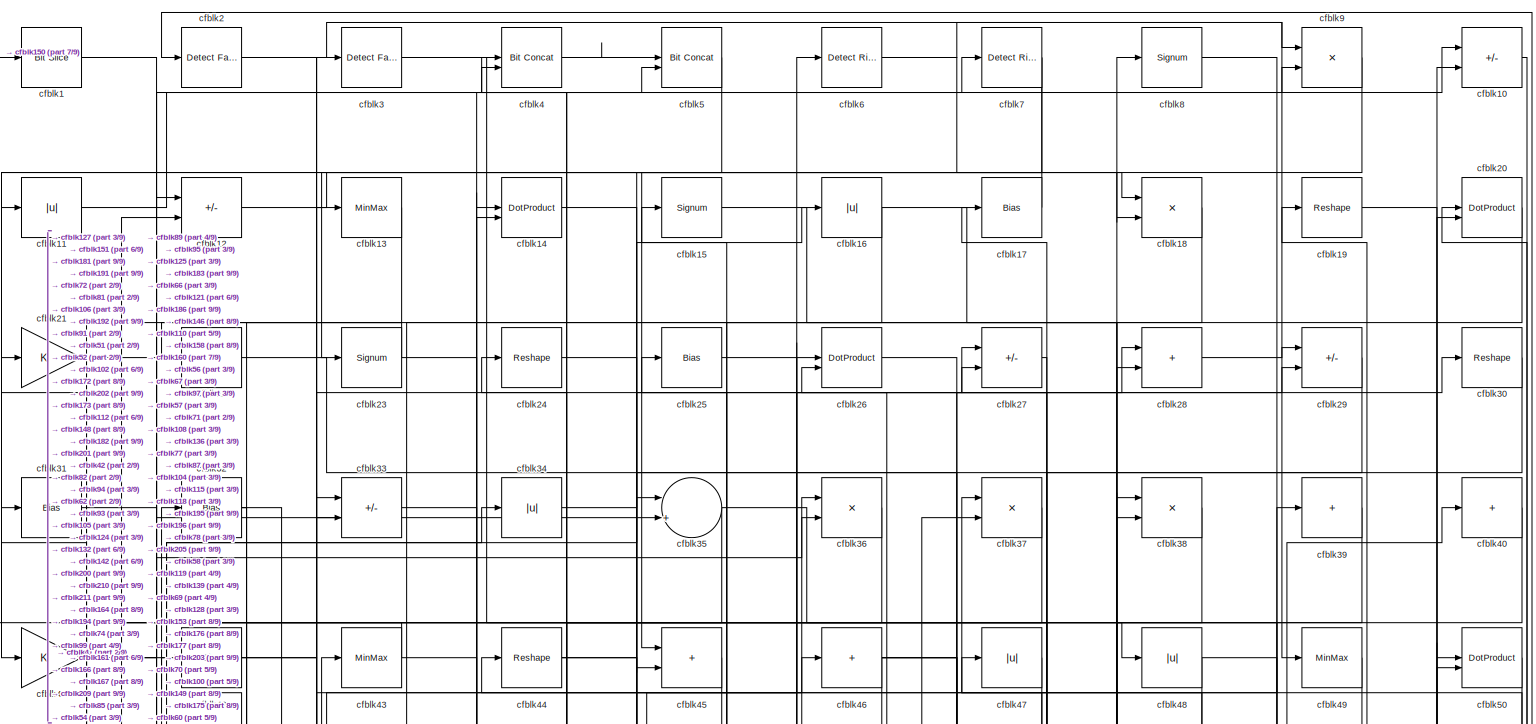
[diagram: root canvas - part 1/9, full width, top band]
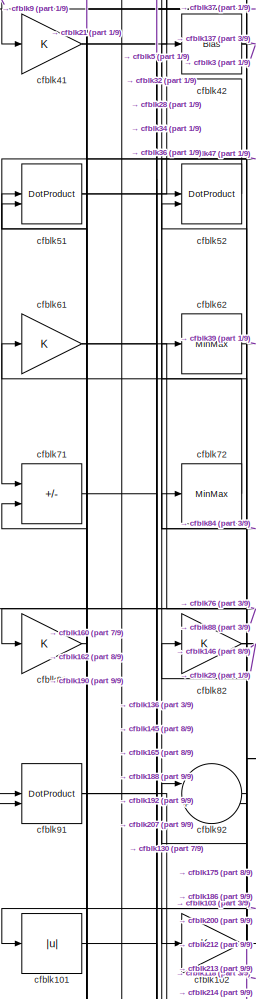
[diagram: root canvas - part 2/9, middle left region]
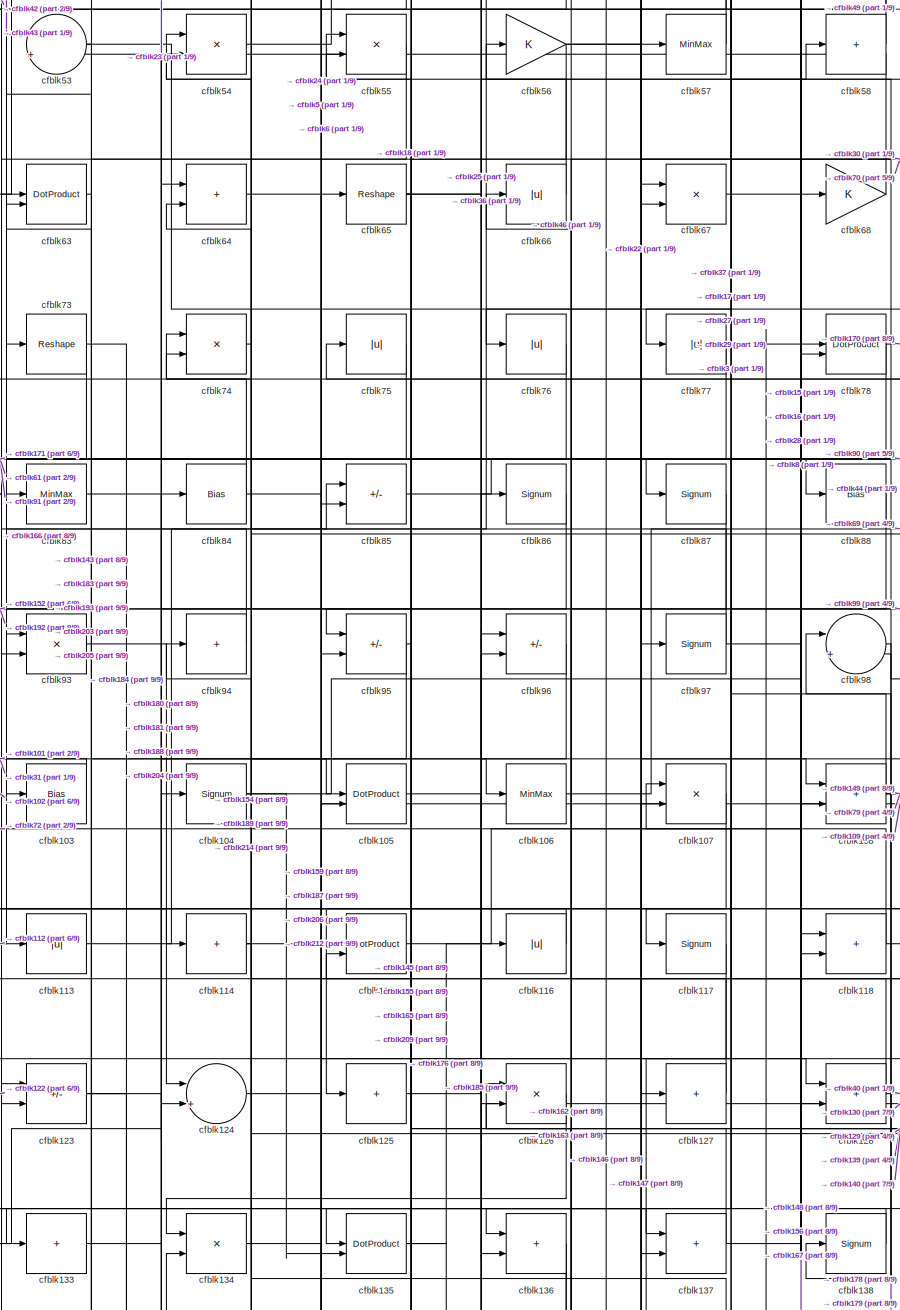
[diagram: root canvas - part 3/9, central region]
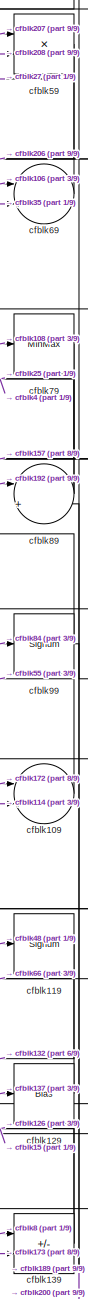
[diagram: root canvas - part 4/9, middle right region]
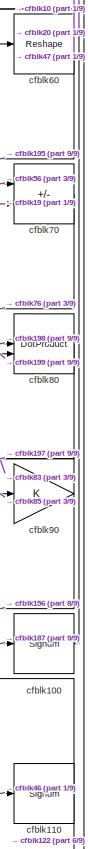
[diagram: root canvas - part 5/9, middle right region]
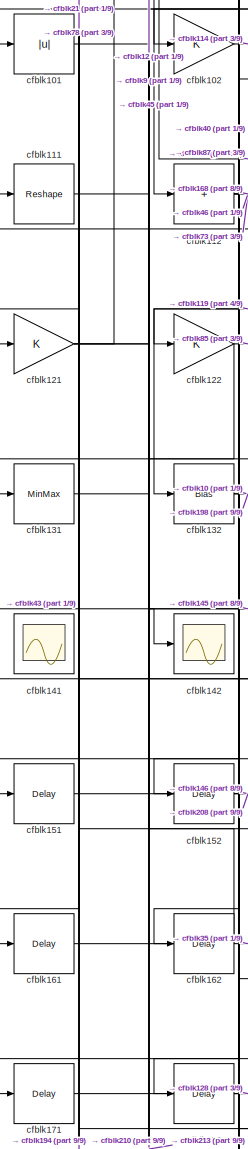
[diagram: root canvas - part 6/9, middle left region]
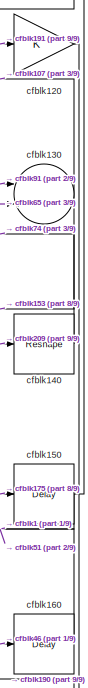
[diagram: root canvas - part 7/9, middle right region]
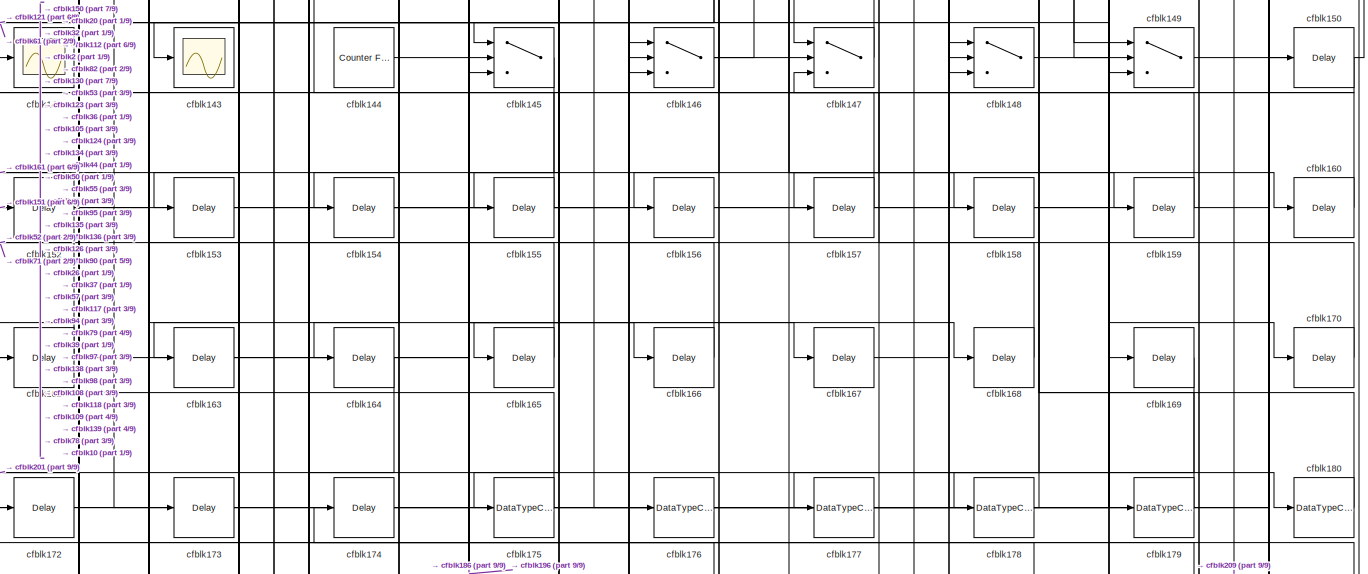
[diagram: root canvas - part 8/9, full width, bottom band]
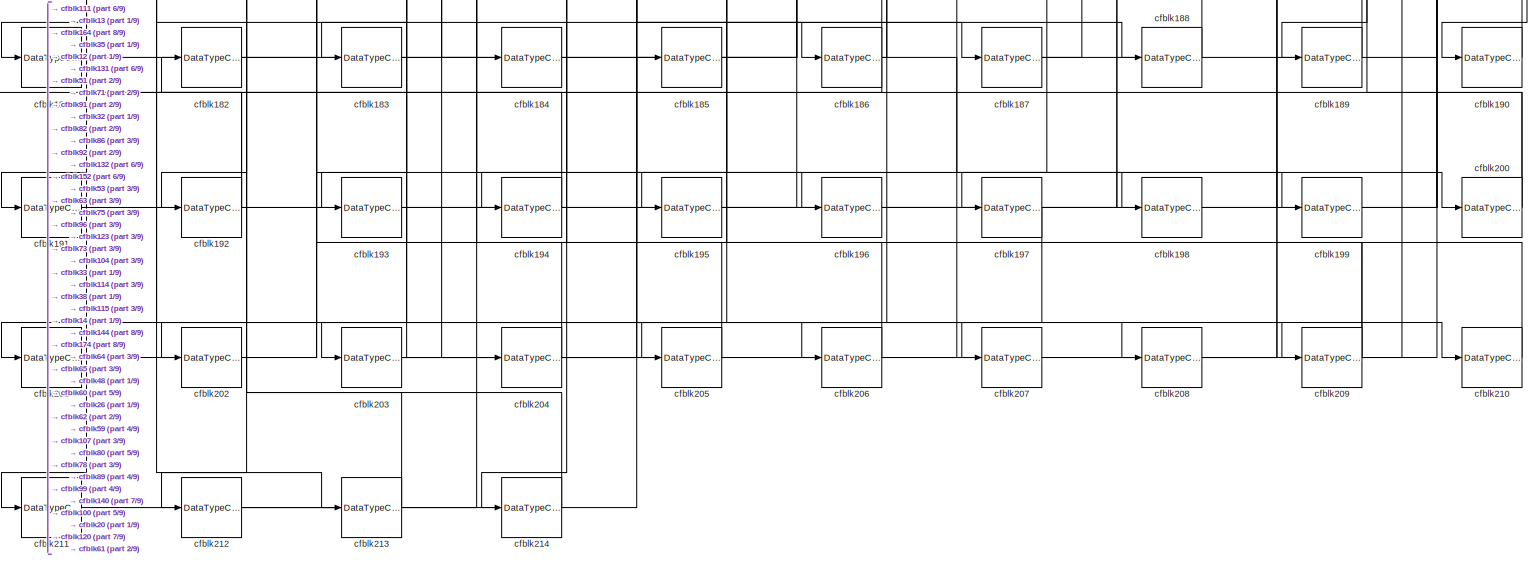
[diagram: root canvas - part 9/9, full width, bottom band]
MODEL slx_e8215247895d
KIND model
CONFIG AbsTol = auto
CONFIG EnableMultiTasking = off
CONFIG FixedStep = auto
CONFIG MaxStep = auto
CONFIG MinStep = auto
CONFIG RelTol = 1e-3
CONFIG SampleTimeConstraint = Unconstrained
CONFIG SolverName = VariableStepAuto
CONFIG StartTime = 0.0
CONFIG StopTime = 10.0
BLOCK [Reference] cfblk1  REF=hdlsllib/Logic and Bit
Operations/Bit Slice
  SourceBlock = hdlsllib/Logic and Bit\nOperations/Bit Slice
  SourceType = Bit Slice
BLOCK [Sum] cfblk10
  IconShape = rectangular
  Inputs = +-
BLOCK [Signum] cfblk100
BLOCK [Abs] cfblk101
  SaturateOnIntegerOverflow = off
BLOCK [Gain] cfblk102
BLOCK [Bias] cfblk103
  Bias = 0.0
  SaturateOnIntegerOverflow = off
BLOCK [Signum] cfblk104
BLOCK [DotProduct] cfblk105
  OutDataTypeStr = Inherit: Inherit via internal rule
BLOCK [MinMax] cfblk106
BLOCK [Product] cfblk107
  Inputs = */
  RndMeth = Zero
  SaturateOnIntegerOverflow = on
BLOCK [Sum] cfblk108
  IconShape = rectangular
BLOCK [Sum] cfblk109
  Inputs = |++
BLOCK [Abs] cfblk11
  SaturateOnIntegerOverflow = off
BLOCK [Signum] cfblk110
BLOCK [Reshape] cfblk111
BLOCK [Sum] cfblk112
  IconShape = rectangular
  Inputs = +
BLOCK [Abs] cfblk113
  SaturateOnIntegerOverflow = off
BLOCK [Sum] cfblk114
  IconShape = rectangular
  Inputs = +
BLOCK [DotProduct] cfblk115
  OutDataTypeStr = Inherit: Inherit via internal rule
BLOCK [Abs] cfblk116
  SaturateOnIntegerOverflow = off
BLOCK [Signum] cfblk117
BLOCK [Sum] cfblk118
  IconShape = rectangular
BLOCK [Signum] cfblk119
BLOCK [Sum] cfblk12
  IconShape = rectangular
  Inputs = +-
BLOCK [Gain] cfblk120
BLOCK [Gain] cfblk121
BLOCK [Gain] cfblk122
BLOCK [Sum] cfblk123
  IconShape = rectangular
  Inputs = +-
BLOCK [Sum] cfblk124
  Inputs = |++
BLOCK [Sum] cfblk125
  IconShape = rectangular
  Inputs = +
BLOCK [Product] cfblk126
  Inputs = */
  RndMeth = Zero
  SaturateOnIntegerOverflow = on
BLOCK [Sum] cfblk127
  IconShape = rectangular
  Inputs = +
BLOCK [Sum] cfblk128
  IconShape = rectangular
BLOCK [Bias] cfblk129
  Bias = 0.0
  SaturateOnIntegerOverflow = off
BLOCK [MinMax] cfblk13
BLOCK [Sum] cfblk130
  Inputs = |++
BLOCK [MinMax] cfblk131
BLOCK [Bias] cfblk132
  Bias = 0.0
  SaturateOnIntegerOverflow = off
BLOCK [Sum] cfblk133
  IconShape = rectangular
  Inputs = +
BLOCK [Product] cfblk134
  Inputs = */
  RndMeth = Zero
  SaturateOnIntegerOverflow = on
BLOCK [DotProduct] cfblk135
  OutDataTypeStr = Inherit: Inherit via internal rule
BLOCK [Sum] cfblk136
  IconShape = rectangular
BLOCK [Sum] cfblk137
  IconShape = rectangular
BLOCK [Signum] cfblk138
BLOCK [Sum] cfblk139
  IconShape = rectangular
  Inputs = +-
BLOCK [DotProduct] cfblk14
  OutDataTypeStr = Inherit: Inherit via internal rule
BLOCK [Reshape] cfblk140
BLOCK [Scope] cfblk141
  Floating = on
  NumInputPorts = 1
  ScopeSpecificationString = Simulink.scopes.TimeScopeBlockCfg('CurrentConfiguration', extmgr.ConfigurationSet(extmgr.Configuration('Core','General UI',true,'FigureColor',[0.156862745098039 0.156862745098039 0.156862745098039]),extmgr.Configuration('Core','Source UI',true),extmgr.Configuration('Sources','WiredSimulink',true,'DataLoggingVariableName','ScopeData1','DataLoggingSaveFormat','StructureWithTime','DataLoggingLimitDat...<+2713ch>
BLOCK [Scope] cfblk142
  Floating = off
  NumInputPorts = 1
  ScopeSpecificationString = Simulink.scopes.TimeScopeBlockCfg('CurrentConfiguration', extmgr.ConfigurationSet(extmgr.Configuration('Core','General UI',true),extmgr.Configuration('Core','Source UI',true),extmgr.Configuration('Sources','WiredSimulink',true,'DataLoggingVariableName','ScopeData2','DataLoggingSaveFormat','Array','DataLoggingLimitDataPoints',true,'DataLoggingDecimation','1'),extmgr.Configuration('Visuals','Time Do...<+868ch>
BLOCK [Scope] cfblk143
  Floating = off
  NumInputPorts = 1
  ScopeSpecificationString = Simulink.scopes.TimeScopeBlockCfg('CurrentConfiguration', extmgr.ConfigurationSet(extmgr.Configuration('Core','General UI',true),extmgr.Configuration('Core','Source UI',true),extmgr.Configuration('Sources','WiredSimulink',true,'DataLoggingVariableName','ScopeData2','DataLoggingSaveFormat','Array','DataLoggingLimitDataPoints',true,'DataLoggingDecimation','1'),extmgr.Configuration('Visuals','Time Do...<+868ch>
BLOCK [Reference] cfblk144  REF=hdlsllib/Sources/Counter
Free-Running
  SourceBlock = hdlsllib/Sources/Counter\nFree-Running
  SourceType = Counter Free-Running
BLOCK [Switch] cfblk145
  InputSameDT = off
  SaturateOnIntegerOverflow = off
BLOCK [Switch] cfblk146
  InputSameDT = off
  SaturateOnIntegerOverflow = off
BLOCK [Switch] cfblk147
  InputSameDT = off
  SaturateOnIntegerOverflow = off
BLOCK [Switch] cfblk148
  InputSameDT = off
  SaturateOnIntegerOverflow = off
BLOCK [Switch] cfblk149
  InputSameDT = off
  SaturateOnIntegerOverflow = off
BLOCK [Signum] cfblk15
BLOCK [Delay] cfblk150
  InputPortMap = u0
  SampleTime = 1
BLOCK [Delay] cfblk151
  InputPortMap = u0
  SampleTime = 1
BLOCK [Delay] cfblk152
  InputPortMap = u0
  SampleTime = 1
BLOCK [Delay] cfblk153
  InputPortMap = u0
  SampleTime = 1
BLOCK [Delay] cfblk154
  InputPortMap = u0
  SampleTime = 1
BLOCK [Delay] cfblk155
  InputPortMap = u0
  SampleTime = 1
BLOCK [Delay] cfblk156
  InputPortMap = u0
  SampleTime = 1
BLOCK [Delay] cfblk157
  InputPortMap = u0
  SampleTime = 1
BLOCK [Delay] cfblk158
  InputPortMap = u0
  SampleTime = 1
BLOCK [Delay] cfblk159
  InputPortMap = u0
  SampleTime = 1
BLOCK [Abs] cfblk16
  SaturateOnIntegerOverflow = off
BLOCK [Delay] cfblk160
  InputPortMap = u0
  SampleTime = 1
BLOCK [Delay] cfblk161
  InputPortMap = u0
  SampleTime = 1
BLOCK [Delay] cfblk162
  InputPortMap = u0
  SampleTime = 1
BLOCK [Delay] cfblk163
  InputPortMap = u0
  SampleTime = 1
BLOCK [Delay] cfblk164
  InputPortMap = u0
  SampleTime = 1
BLOCK [Delay] cfblk165
  InputPortMap = u0
  SampleTime = 1
BLOCK [Delay] cfblk166
  InputPortMap = u0
  SampleTime = 1
BLOCK [Delay] cfblk167
  InputPortMap = u0
  SampleTime = 1
BLOCK [Delay] cfblk168
  InputPortMap = u0
  SampleTime = 1
BLOCK [Delay] cfblk169
  InputPortMap = u0
  SampleTime = 1
BLOCK [Bias] cfblk17
  Bias = 0.0
  SaturateOnIntegerOverflow = off
BLOCK [Delay] cfblk170
  InputPortMap = u0
  SampleTime = 1
BLOCK [Delay] cfblk171
  InputPortMap = u0
  SampleTime = 1
BLOCK [Delay] cfblk172
  InputPortMap = u0
  SampleTime = 1
BLOCK [Delay] cfblk173
  InputPortMap = u0
  SampleTime = 1
BLOCK [Delay] cfblk174
  InputPortMap = u0
  SampleTime = 1
BLOCK [DataTypeConversion] cfblk175
  RndMeth = Floor
  SaturateOnIntegerOverflow = off
BLOCK [DataTypeConversion] cfblk176
  OutDataTypeStr = uint8
  RndMeth = Floor
  SaturateOnIntegerOverflow = off
BLOCK [DataTypeConversion] cfblk177
  OutDataTypeStr = uint8
  RndMeth = Floor
  SaturateOnIntegerOverflow = off
BLOCK [DataTypeConversion] cfblk178
  OutDataTypeStr = uint8
  RndMeth = Floor
  SaturateOnIntegerOverflow = off
BLOCK [DataTypeConversion] cfblk179
  OutDataTypeStr = uint8
  RndMeth = Floor
  SaturateOnIntegerOverflow = off
BLOCK [Product] cfblk18
  Inputs = */
  RndMeth = Zero
  SaturateOnIntegerOverflow = on
BLOCK [DataTypeConversion] cfblk180
  OutDataTypeStr = uint8
  RndMeth = Floor
  SaturateOnIntegerOverflow = off
BLOCK [DataTypeConversion] cfblk181
  OutDataTypeStr = uint8
  RndMeth = Floor
  SaturateOnIntegerOverflow = off
BLOCK [DataTypeConversion] cfblk182
  OutDataTypeStr = uint8
  RndMeth = Floor
  SaturateOnIntegerOverflow = off
BLOCK [DataTypeConversion] cfblk183
  OutDataTypeStr = uint8
  RndMeth = Floor
  SaturateOnIntegerOverflow = off
BLOCK [DataTypeConversion] cfblk184
  OutDataTypeStr = uint8
  RndMeth = Floor
  SaturateOnIntegerOverflow = off
BLOCK [DataTypeConversion] cfblk185
  OutDataTypeStr = uint8
  RndMeth = Floor
  SaturateOnIntegerOverflow = off
BLOCK [DataTypeConversion] cfblk186
  RndMeth = Floor
  SaturateOnIntegerOverflow = off
BLOCK [DataTypeConversion] cfblk187
  RndMeth = Floor
  SaturateOnIntegerOverflow = off
BLOCK [DataTypeConversion] cfblk188
  OutDataTypeStr = uint8
  RndMeth = Floor
  SaturateOnIntegerOverflow = off
BLOCK [DataTypeConversion] cfblk189
  OutDataTypeStr = uint8
  RndMeth = Floor
  SaturateOnIntegerOverflow = off
BLOCK [Reshape] cfblk19
BLOCK [DataTypeConversion] cfblk190
  OutDataTypeStr = uint8
  RndMeth = Floor
  SaturateOnIntegerOverflow = off
BLOCK [DataTypeConversion] cfblk191
  OutDataTypeStr = uint8
  RndMeth = Floor
  SaturateOnIntegerOverflow = off
BLOCK [DataTypeConversion] cfblk192
  RndMeth = Floor
  SaturateOnIntegerOverflow = off
BLOCK [DataTypeConversion] cfblk193
  OutDataTypeStr = uint8
  RndMeth = Floor
  SaturateOnIntegerOverflow = off
BLOCK [DataTypeConversion] cfblk194
  OutDataTypeStr = uint8
  RndMeth = Floor
  SaturateOnIntegerOverflow = off
BLOCK [DataTypeConversion] cfblk195
  OutDataTypeStr = uint8
  RndMeth = Floor
  SaturateOnIntegerOverflow = off
BLOCK [DataTypeConversion] cfblk196
  OutDataTypeStr = uint8
  RndMeth = Floor
  SaturateOnIntegerOverflow = off
BLOCK [DataTypeConversion] cfblk197
  OutDataTypeStr = uint8
  RndMeth = Floor
  SaturateOnIntegerOverflow = off
BLOCK [DataTypeConversion] cfblk198
  OutDataTypeStr = uint8
  RndMeth = Floor
  SaturateOnIntegerOverflow = off
BLOCK [DataTypeConversion] cfblk199
  OutDataTypeStr = uint8
  RndMeth = Floor
  SaturateOnIntegerOverflow = off
BLOCK [Reference] cfblk2  REF=hdlsllib/Logic and Bit
Operations/Detect Fall
Negative
  SourceBlock = hdlsllib/Logic and Bit\nOperations/Detect Fall\nNegative
  SourceType = Detect Fall Negative
BLOCK [DotProduct] cfblk20
  OutDataTypeStr = Inherit: Inherit via internal rule
BLOCK [DataTypeConversion] cfblk200
  RndMeth = Floor
  SaturateOnIntegerOverflow = off
BLOCK [DataTypeConversion] cfblk201
  OutDataTypeStr = uint8
  RndMeth = Floor
  SaturateOnIntegerOverflow = off
BLOCK [DataTypeConversion] cfblk202
  OutDataTypeStr = uint8
  RndMeth = Floor
  SaturateOnIntegerOverflow = off
BLOCK [DataTypeConversion] cfblk203
  RndMeth = Floor
  SaturateOnIntegerOverflow = off
BLOCK [DataTypeConversion] cfblk204
  OutDataTypeStr = uint8
  RndMeth = Floor
  SaturateOnIntegerOverflow = off
BLOCK [DataTypeConversion] cfblk205
  OutDataTypeStr = uint8
  RndMeth = Floor
  SaturateOnIntegerOverflow = off
BLOCK [DataTypeConversion] cfblk206
  OutDataTypeStr = uint8
  RndMeth = Floor
  SaturateOnIntegerOverflow = off
BLOCK [DataTypeConversion] cfblk207
  OutDataTypeStr = uint8
  RndMeth = Floor
  SaturateOnIntegerOverflow = off
BLOCK [DataTypeConversion] cfblk208
  OutDataTypeStr = uint8
  RndMeth = Floor
  SaturateOnIntegerOverflow = off
BLOCK [DataTypeConversion] cfblk209
  RndMeth = Floor
  SaturateOnIntegerOverflow = off
BLOCK [Gain] cfblk21
BLOCK [DataTypeConversion] cfblk210
  OutDataTypeStr = uint8
  RndMeth = Floor
  SaturateOnIntegerOverflow = off
BLOCK [DataTypeConversion] cfblk211
  OutDataTypeStr = uint8
  RndMeth = Floor
  SaturateOnIntegerOverflow = off
BLOCK [DataTypeConversion] cfblk212
  OutDataTypeStr = uint8
  RndMeth = Floor
  SaturateOnIntegerOverflow = off
BLOCK [DataTypeConversion] cfblk213
  OutDataTypeStr = uint8
  RndMeth = Floor
  SaturateOnIntegerOverflow = off
BLOCK [DataTypeConversion] cfblk214
  OutDataTypeStr = uint8
  RndMeth = Floor
  SaturateOnIntegerOverflow = off
BLOCK [Sum] cfblk22
  IconShape = rectangular
  Inputs = +
BLOCK [Signum] cfblk23
BLOCK [Reshape] cfblk24
BLOCK [Bias] cfblk25
  Bias = 0.0
  SaturateOnIntegerOverflow = off
BLOCK [DotProduct] cfblk26
  OutDataTypeStr = Inherit: Inherit via internal rule
BLOCK [Sum] cfblk27
  IconShape = rectangular
  Inputs = +-
BLOCK [Sum] cfblk28
  IconShape = rectangular
BLOCK [Sum] cfblk29
  IconShape = rectangular
  Inputs = +-
BLOCK [Reference] cfblk3  REF=hdlsllib/Logic and Bit
Operations/Detect Fall
Negative
  SourceBlock = hdlsllib/Logic and Bit\nOperations/Detect Fall\nNegative
  SourceType = Detect Fall Negative
BLOCK [Reshape] cfblk30
BLOCK [Bias] cfblk31
  Bias = 0.0
  SaturateOnIntegerOverflow = off
BLOCK [Bias] cfblk32
  Bias = 0.0
  SaturateOnIntegerOverflow = off
BLOCK [Sum] cfblk33
  IconShape = rectangular
  Inputs = +-
BLOCK [Abs] cfblk34
  SaturateOnIntegerOverflow = off
BLOCK [Sum] cfblk35
  Inputs = |++
BLOCK [Product] cfblk36
  Inputs = */
  RndMeth = Zero
  SaturateOnIntegerOverflow = on
BLOCK [Product] cfblk37
  Inputs = */
  RndMeth = Zero
  SaturateOnIntegerOverflow = on
BLOCK [Product] cfblk38
  Inputs = */
  RndMeth = Zero
  SaturateOnIntegerOverflow = on
BLOCK [Sum] cfblk39
  IconShape = rectangular
  Inputs = +
BLOCK [Reference] cfblk4  REF=hdlsllib/Logic and Bit
Operations/Bit Concat
  SourceBlock = hdlsllib/Logic and Bit\nOperations/Bit Concat
  SourceType = Bit Concat
BLOCK [Sum] cfblk40
  IconShape = rectangular
  Inputs = +
BLOCK [Gain] cfblk41
BLOCK [Bias] cfblk42
  Bias = 0.0
  SaturateOnIntegerOverflow = off
BLOCK [MinMax] cfblk43
BLOCK [Reshape] cfblk44
BLOCK [Sum] cfblk45
  IconShape = rectangular
BLOCK [Sum] cfblk46
  IconShape = rectangular
  Inputs = +
BLOCK [Abs] cfblk47
  SaturateOnIntegerOverflow = off
BLOCK [Abs] cfblk48
  SaturateOnIntegerOverflow = off
BLOCK [MinMax] cfblk49
BLOCK [Reference] cfblk5  REF=hdlsllib/Logic and Bit
Operations/Bit Concat
  SourceBlock = hdlsllib/Logic and Bit\nOperations/Bit Concat
  SourceType = Bit Concat
BLOCK [DotProduct] cfblk50
  OutDataTypeStr = Inherit: Inherit via internal rule
BLOCK [DotProduct] cfblk51
  OutDataTypeStr = Inherit: Inherit via internal rule
BLOCK [DotProduct] cfblk52
  OutDataTypeStr = Inherit: Inherit via internal rule
BLOCK [Sum] cfblk53
  Inputs = |++
BLOCK [Product] cfblk54
  Inputs = */
  RndMeth = Zero
  SaturateOnIntegerOverflow = on
BLOCK [Product] cfblk55
  Inputs = */
  RndMeth = Zero
  SaturateOnIntegerOverflow = on
BLOCK [Gain] cfblk56
BLOCK [MinMax] cfblk57
BLOCK [Sum] cfblk58
  IconShape = rectangular
  Inputs = +
BLOCK [Product] cfblk59
  Inputs = */
  RndMeth = Zero
  SaturateOnIntegerOverflow = on
BLOCK [Reference] cfblk6  REF=hdlsllib/Logic and Bit
Operations/Detect Rise
Nonnegative
  SourceBlock = hdlsllib/Logic and Bit\nOperations/Detect Rise\nNonnegative
  SourceType = Detect Rise Nonnegative
BLOCK [Reshape] cfblk60
BLOCK [Gain] cfblk61
BLOCK [MinMax] cfblk62
BLOCK [DotProduct] cfblk63
  OutDataTypeStr = Inherit: Inherit via internal rule
BLOCK [Sum] cfblk64
  IconShape = rectangular
BLOCK [Reshape] cfblk65
BLOCK [Abs] cfblk66
  SaturateOnIntegerOverflow = off
BLOCK [Product] cfblk67
  Inputs = */
  RndMeth = Zero
  SaturateOnIntegerOverflow = on
BLOCK [Gain] cfblk68
BLOCK [Sum] cfblk69
  Inputs = |++
BLOCK [Reference] cfblk7  REF=hdlsllib/Logic and Bit
Operations/Detect Rise
Positive
  SourceBlock = hdlsllib/Logic and Bit\nOperations/Detect Rise\nPositive
  SourceType = Detect Rise Positive
BLOCK [Sum] cfblk70
  IconShape = rectangular
  Inputs = +-
BLOCK [Sum] cfblk71
  IconShape = rectangular
  Inputs = +-
BLOCK [MinMax] cfblk72
BLOCK [Reshape] cfblk73
BLOCK [Product] cfblk74
  Inputs = */
  RndMeth = Zero
  SaturateOnIntegerOverflow = on
BLOCK [Abs] cfblk75
  SaturateOnIntegerOverflow = off
BLOCK [Abs] cfblk76
  SaturateOnIntegerOverflow = off
BLOCK [Abs] cfblk77
  SaturateOnIntegerOverflow = off
BLOCK [DotProduct] cfblk78
  OutDataTypeStr = Inherit: Inherit via internal rule
BLOCK [MinMax] cfblk79
BLOCK [Signum] cfblk8
BLOCK [DotProduct] cfblk80
  OutDataTypeStr = Inherit: Inherit via internal rule
BLOCK [Gain] cfblk81
BLOCK [Gain] cfblk82
BLOCK [MinMax] cfblk83
BLOCK [Bias] cfblk84
  Bias = 0.0
  SaturateOnIntegerOverflow = off
BLOCK [Sum] cfblk85
  IconShape = rectangular
  Inputs = +-
BLOCK [Signum] cfblk86
BLOCK [Signum] cfblk87
BLOCK [Bias] cfblk88
  Bias = 0.0
  SaturateOnIntegerOverflow = off
BLOCK [Sum] cfblk89
  Inputs = |++
BLOCK [Product] cfblk9
  Inputs = */
  RndMeth = Zero
  SaturateOnIntegerOverflow = on
BLOCK [Gain] cfblk90
BLOCK [DotProduct] cfblk91
  OutDataTypeStr = Inherit: Inherit via internal rule
BLOCK [Sum] cfblk92
  Inputs = |++
BLOCK [Product] cfblk93
  Inputs = */
  RndMeth = Zero
  SaturateOnIntegerOverflow = on
BLOCK [Sum] cfblk94
  IconShape = rectangular
  Inputs = +
BLOCK [Sum] cfblk95
  IconShape = rectangular
  Inputs = +-
BLOCK [Sum] cfblk96
  IconShape = rectangular
  Inputs = +-
BLOCK [Signum] cfblk97
BLOCK [Sum] cfblk98
  Inputs = |++
BLOCK [Signum] cfblk99
LINE cfblk100:1 -> cfblk20:1
LINE cfblk101:1 -> cfblk136:2
LINE cfblk102:1 -> cfblk114:1
LINE cfblk103:1 -> cfblk101:1
NET cfblk104:1 -> cfblk135:2, cfblk28:2
LINE cfblk105:1 -> cfblk137:1
LINE cfblk106:1 -> cfblk69:1
LINE cfblk107:1 -> cfblk125:1
NET cfblk108:1 -> cfblk149:1, cfblk17:1, cfblk79:1
LINE cfblk109:1 -> cfblk55:1
LINE cfblk10:1 -> cfblk60:1
NET cfblk110:1 -> cfblk122:1, cfblk19:1
LINE cfblk111:1 -> cfblk210:1
NET cfblk112:1 -> cfblk168:1, cfblk46:1, cfblk73:1
LINE cfblk113:1 -> cfblk56:1
NET cfblk114:1 -> cfblk109:2, cfblk214:1
LINE cfblk115:1 -> cfblk8:1
LINE cfblk116:1 -> cfblk113:1
LINE cfblk117:1 -> cfblk147:1
NET cfblk118:1 -> cfblk149:2, cfblk72:1
LINE cfblk119:1 -> cfblk132:1
LINE cfblk11:1 -> cfblk7:1
LINE cfblk120:1 -> cfblk190:1
NET cfblk121:1 -> cfblk12:2, cfblk145:2, cfblk9:2
NET cfblk122:1 -> cfblk131:1, cfblk85:1
NET cfblk123:1 -> cfblk180:1, cfblk204:1
LINE cfblk124:1 -> cfblk159:1
LINE cfblk125:1 -> cfblk27:1
LINE cfblk126:1 -> cfblk134:1
LINE cfblk127:1 -> cfblk31:1
NET cfblk128:1 -> cfblk40:1, cfblk54:2
LINE cfblk129:1 -> cfblk66:1
LINE cfblk12:1 -> cfblk18:1
NET cfblk130:1 -> cfblk107:1, cfblk153:1
LINE cfblk131:1 -> cfblk213:1
NET cfblk132:1 -> cfblk10:1, cfblk198:1
LINE cfblk133:1 -> cfblk84:1
NET cfblk134:1 -> cfblk149:3, cfblk74:2
NET cfblk135:1 -> cfblk116:1, cfblk176:1
NET cfblk136:1 -> cfblk162:1, cfblk163:1
NET cfblk137:1 -> cfblk129:1, cfblk75:1
LINE cfblk138:1 -> cfblk135:1
NET cfblk139:1 -> cfblk126:1, cfblk15:1
LINE cfblk13:1 -> cfblk181:1
LINE cfblk140:1 -> cfblk74:1
LINE cfblk144:1 -> cfblk186:1
LINE cfblk145:1 -> cfblk161:1
NET cfblk146:1 -> cfblk37:2, cfblk57:1
LINE cfblk147:1 -> cfblk94:1
LINE cfblk148:1 -> cfblk169:1
LINE cfblk149:1 -> cfblk2:1
LINE cfblk14:1 -> cfblk209:1
LINE cfblk150:1 -> cfblk1:1
LINE cfblk151:1 -> cfblk146:1
LINE cfblk152:1 -> cfblk208:1
LINE cfblk153:1 -> cfblk10:2
LINE cfblk154:1 -> cfblk146:2
LINE cfblk155:1 -> cfblk134:2
LINE cfblk156:1 -> cfblk118:2
LINE cfblk157:1 -> cfblk147:2
LINE cfblk158:1 -> cfblk179:1
LINE cfblk159:1 -> cfblk126:2
LINE cfblk15:1 -> cfblk78:2
LINE cfblk160:1 -> cfblk51:2
LINE cfblk161:1 -> cfblk35:1
LINE cfblk162:1 -> cfblk71:2
LINE cfblk163:1 -> cfblk105:2
LINE cfblk164:1 -> cfblk201:1
LINE cfblk165:1 -> cfblk52:1
LINE cfblk166:1 -> cfblk123:1
LINE cfblk167:1 -> cfblk108:2
LINE cfblk168:1 -> cfblk147:3
LINE cfblk169:1 -> cfblk177:1
NET cfblk16:1 -> cfblk118:1, cfblk93:1
LINE cfblk170:1 -> cfblk55:2
LINE cfblk171:1 -> cfblk128:2
LINE cfblk172:1 -> cfblk109:1
LINE cfblk173:1 -> cfblk139:2
LINE cfblk174:1 -> cfblk196:1
NET cfblk175:1 -> cfblk150:1, cfblk52:2
LINE cfblk176:1 -> cfblk50:1
LINE cfblk177:1 -> cfblk50:2
LINE cfblk178:1 -> cfblk138:1
LINE cfblk179:1 -> cfblk98:1
LINE cfblk17:1 -> cfblk11:1
LINE cfblk180:1 -> cfblk98:2
LINE cfblk181:1 -> cfblk104:1
LINE cfblk182:1 -> cfblk13:1
LINE cfblk183:1 -> cfblk26:1
LINE cfblk184:1 -> cfblk96:1
LINE cfblk185:1 -> cfblk96:2
NET cfblk186:1 -> cfblk182:1, cfblk199:1, cfblk26:2, cfblk62:1
NET cfblk187:1 -> cfblk100:1, cfblk78:1
LINE cfblk188:1 -> cfblk64:1
LINE cfblk189:1 -> cfblk64:2
LINE cfblk18:1 -> cfblk95:1
LINE cfblk190:1 -> cfblk61:1
LINE cfblk191:1 -> cfblk120:1
NET cfblk192:1 -> cfblk12:1, cfblk89:1, cfblk91:1
LINE cfblk193:1 -> cfblk86:1
LINE cfblk194:1 -> cfblk111:1
LINE cfblk195:1 -> cfblk38:1
LINE cfblk196:1 -> cfblk38:2
LINE cfblk197:1 -> cfblk211:1
LINE cfblk198:1 -> cfblk80:1
LINE cfblk199:1 -> cfblk80:2
LINE cfblk19:1 -> cfblk70:2
LINE cfblk1:1 -> cfblk48:1
NET cfblk200:1 -> cfblk82:1, cfblk89:2
LINE cfblk201:1 -> cfblk33:1
LINE cfblk202:1 -> cfblk33:2
NET cfblk203:1 -> cfblk107:2, cfblk185:1, cfblk20:2, cfblk53:1
LINE cfblk204:1 -> cfblk63:1
LINE cfblk205:1 -> cfblk63:2
LINE cfblk206:1 -> cfblk115:1
LINE cfblk207:1 -> cfblk59:1
LINE cfblk208:1 -> cfblk59:2
NET cfblk209:1 -> cfblk115:2, cfblk140:1, cfblk174:1
LINE cfblk20:1 -> cfblk172:1
LINE cfblk210:1 -> cfblk14:1
LINE cfblk211:1 -> cfblk14:2
LINE cfblk212:1 -> cfblk65:1
LINE cfblk213:1 -> cfblk92:1
LINE cfblk214:1 -> cfblk92:2
NET cfblk21:1 -> cfblk151:1, cfblk35:2
LINE cfblk22:1 -> cfblk97:1
NET cfblk23:1 -> cfblk124:2, cfblk22:1
LINE cfblk24:1 -> cfblk128:1
LINE cfblk25:1 -> cfblk108:1
LINE cfblk26:1 -> cfblk158:1
LINE cfblk27:1 -> cfblk87:1
LINE cfblk28:1 -> cfblk29:1
LINE cfblk29:1 -> cfblk77:1
NET cfblk2:1 -> cfblk148:3, cfblk49:1
LINE cfblk30:1 -> cfblk45:2
LINE cfblk31:1 -> cfblk106:1
NET cfblk32:1 -> cfblk173:1, cfblk202:1
LINE cfblk33:1 -> cfblk200:1
LINE cfblk34:1 -> cfblk16:1
NET cfblk35:1 -> cfblk191:1, cfblk69:2
LINE cfblk36:1 -> cfblk164:1
LINE cfblk37:1 -> cfblk81:1
LINE cfblk38:1 -> cfblk194:1
LINE cfblk39:1 -> cfblk148:2
LINE cfblk3:1 -> cfblk136:1
LINE cfblk40:1 -> cfblk102:1
NET cfblk41:1 -> cfblk28:1, cfblk36:2
NET cfblk42:1 -> cfblk137:2, cfblk3:1
NET cfblk43:1 -> cfblk105:1, cfblk142:1
NET cfblk44:1 -> cfblk166:1, cfblk167:1
LINE cfblk45:1 -> cfblk112:1
NET cfblk46:1 -> cfblk110:1, cfblk121:1, cfblk160:1, cfblk67:1
LINE cfblk47:1 -> cfblk71:1
NET cfblk48:1 -> cfblk119:1, cfblk205:1
LINE cfblk49:1 -> cfblk67:2
LINE cfblk4:1 -> cfblk5:1
LINE cfblk50:1 -> cfblk175:1
NET cfblk51:1 -> cfblk188:1, cfblk34:1
LINE cfblk52:1 -> cfblk32:1
NET cfblk53:1 -> cfblk127:1, cfblk143:1
LINE cfblk54:1 -> cfblk6:1
LINE cfblk55:1 -> cfblk123:2
NET cfblk56:1 -> cfblk133:1, cfblk30:1, cfblk70:1
LINE cfblk57:1 -> cfblk37:1
LINE cfblk58:1 -> cfblk44:1
LINE cfblk59:1 -> cfblk206:1
LINE cfblk5:1 -> cfblk85:2
NET cfblk60:1 -> cfblk195:1, cfblk47:1
NET cfblk61:1 -> cfblk145:3, cfblk88:1
LINE cfblk62:1 -> cfblk39:1
LINE cfblk63:1 -> cfblk203:1
LINE cfblk64:1 -> cfblk187:1
NET cfblk65:1 -> cfblk130:2, cfblk145:1, cfblk165:1, cfblk58:1
LINE cfblk66:1 -> cfblk36:1
LINE cfblk67:1 -> cfblk68:1
LINE cfblk68:1 -> cfblk53:2
LINE cfblk69:1 -> cfblk27:2
NET cfblk6:1 -> cfblk18:2, cfblk9:1
LINE cfblk70:1 -> cfblk76:1
LINE cfblk71:1 -> cfblk207:1
LINE cfblk72:1 -> cfblk21:1
NET cfblk73:1 -> cfblk184:1, cfblk93:2
LINE cfblk74:1 -> cfblk24:1
LINE cfblk75:1 -> cfblk193:1
LINE cfblk76:1 -> cfblk91:2
LINE cfblk77:1 -> cfblk103:1
NET cfblk78:1 -> cfblk170:1, cfblk171:1
LINE cfblk79:1 -> cfblk157:1
NET cfblk7:1 -> cfblk23:1, cfblk45:1
LINE cfblk80:1 -> cfblk197:1
LINE cfblk81:1 -> cfblk51:1
NET cfblk82:1 -> cfblk146:3, cfblk29:2
LINE cfblk83:1 -> cfblk95:2
NET cfblk84:1 -> cfblk42:1, cfblk99:1
LINE cfblk85:1 -> cfblk90:1
LINE cfblk86:1 -> cfblk192:1
LINE cfblk87:1 -> cfblk152:1
LINE cfblk88:1 -> cfblk117:1
NET cfblk89:1 -> cfblk25:1, cfblk4:2
LINE cfblk8:1 -> cfblk139:1
NET cfblk90:1 -> cfblk156:1, cfblk83:1
NET cfblk91:1 -> cfblk130:1, cfblk5:2
LINE cfblk92:1 -> cfblk212:1
LINE cfblk93:1 -> cfblk124:1
LINE cfblk94:1 -> cfblk43:1
NET cfblk95:1 -> cfblk154:1, cfblk155:1
LINE cfblk96:1 -> cfblk183:1
NET cfblk97:1 -> cfblk148:1, cfblk54:1
LINE cfblk98:1 -> cfblk178:1
NET cfblk99:1 -> cfblk189:1, cfblk4:1
LINE cfblk9:1 -> cfblk41:1
note: NET lines group one-source signal fan-out (src -> all destinations, sorted); 1:1 wires keep LINE
